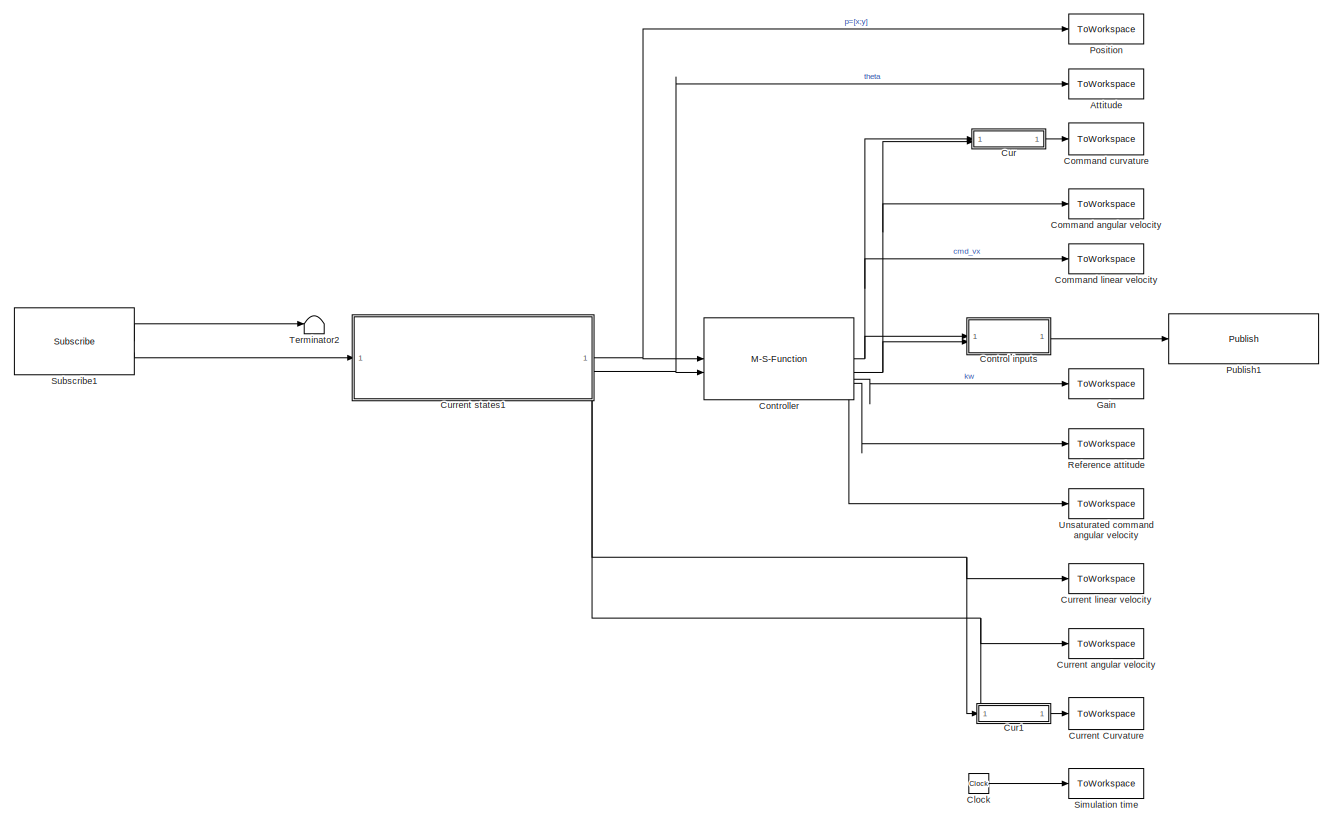
[diagram: root canvas - part 1/2, left side, full height]
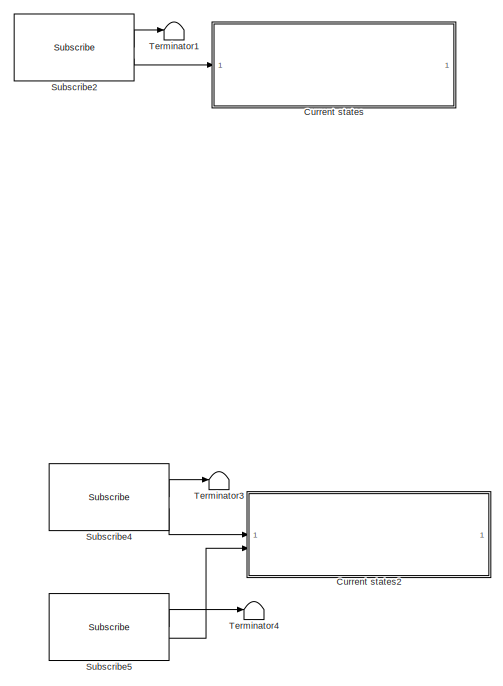
[diagram: root canvas - part 2/2, bottom right region]
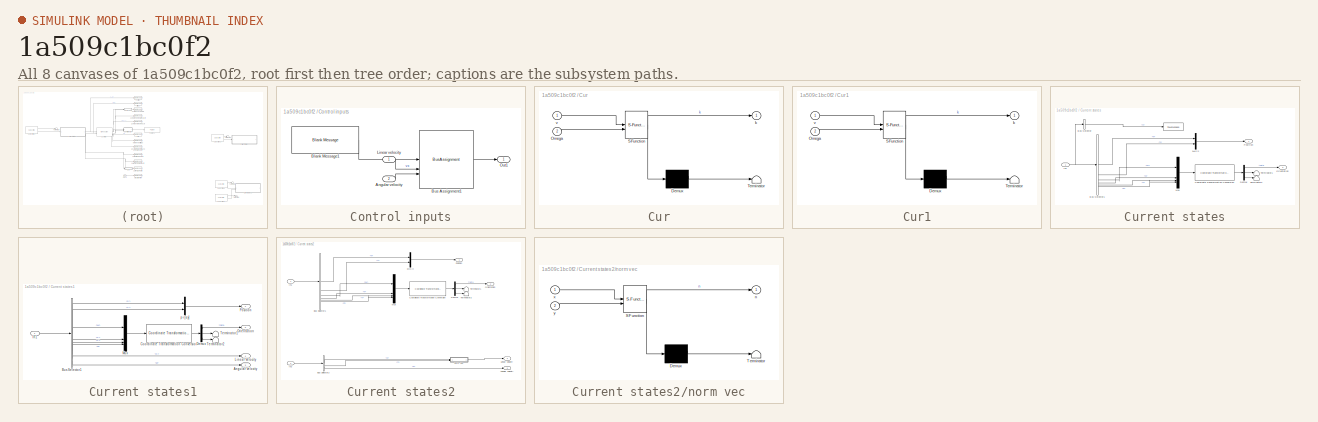
[diagram: thumbnail index - all 8 canvases of the model, root first then tree order]
MODEL slx_1a509c1bc0f2
KIND model
CONFIG AbsTol = auto
CONFIG EnableMultiTasking = off
CONFIG FixedStep = 0.1
CONFIG MaxStep = 0.1
CONFIG MinStep = auto
CONFIG RelTol = 1e-3
CONFIG SampleTimeConstraint = Unconstrained
CONFIG SolverName = FixedStepAuto
CONFIG StartTime = 0.0
CONFIG StopTime = 300
BLOCK [ToWorkspace] Attitude
  MaxDataPoints = inf
  SampleTime = -1
  VariableName = theta
BLOCK [Clock] Clock
BLOCK [ToWorkspace] Command angular velocity
  MaxDataPoints = inf
  SampleTime = -1
  VariableName = cmd_w
BLOCK [ToWorkspace] Command curvature
  MaxDataPoints = inf
  SampleTime = -1
  VariableName = cmd_k
BLOCK [ToWorkspace] Command linear velocity
  MaxDataPoints = inf
  SampleTime = -1
  VariableName = cmd_vx
BLOCK [SubSystem] Control inputs
BLOCK [Inport] Control inputs/Angular velocity
  Port = 2
BLOCK [Reference] Control inputs/Blank Message1  REF=robotlib/Blank Message
  SourceBlock = robotlib/Blank Message
  SourceType = ROS Blank Message
BLOCK [BusAssignment] Control inputs/Bus Assignment1
  AssignedSignals = Linear.X,Angular.Z
BLOCK [Inport] Control inputs/Linear velocity
BLOCK [Outport] Control inputs/Out1
BLOCK [M-S-Function] Controller
  FunctionName = se2_controller_Unicycle
  Parameters = pd,theta_d,rho,v_max,k1,k2,k3
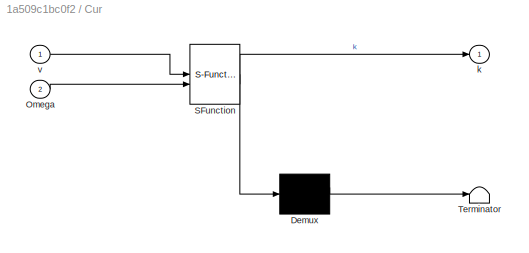
BLOCK [SubSystem] Cur
  ErrorFcn = Stateflow.Translate.translate
  PermitHierarchicalResolution = ExplicitOnly
  SFBlockType = MATLAB Function
  ShowPortLabels = none
  TreatAsAtomicUnit = on
BLOCK [Demux] Cur/ Demux 
  Outputs = 1
BLOCK [S-Function] Cur/ SFunction 
  EnableBusSupport = on
  FunctionName = sf_sfun
  PortCounts = [2 2]
  SFcnIsStateOwnerBlock = off
  SFunctionDeploymentMode = off
  Tag = Stateflow S-Function 2
BLOCK [Terminator] Cur/ Terminator 
BLOCK [Inport] Cur/Omega
  Port = 2
BLOCK [Outport] Cur/k
BLOCK [Inport] Cur/v
BLOCK [SubSystem] Cur1
  ErrorFcn = Stateflow.Translate.translate
  PermitHierarchicalResolution = ExplicitOnly
  SFBlockType = MATLAB Function
  ShowPortLabels = none
  TreatAsAtomicUnit = on
BLOCK [Demux] Cur1/ Demux 
  Outputs = 1
BLOCK [S-Function] Cur1/ SFunction 
  EnableBusSupport = on
  FunctionName = sf_sfun
  PortCounts = [2 2]
  SFcnIsStateOwnerBlock = off
  SFunctionDeploymentMode = off
  Tag = Stateflow S-Function 1
BLOCK [Terminator] Cur1/ Terminator 
BLOCK [Inport] Cur1/Omega
  Port = 2
BLOCK [Outport] Cur1/k
BLOCK [Inport] Cur1/v
BLOCK [ToWorkspace] Current Curvature
  MaxDataPoints = inf
  SampleTime = -1
  VariableName = cur_k
BLOCK [ToWorkspace] Current angular velocity
  MaxDataPoints = inf
  SampleTime = -1
  VariableName = cur_w
BLOCK [ToWorkspace] Current linear velocity
  MaxDataPoints = inf
  SampleTime = -1
  VariableName = cur_vx
BLOCK [SubSystem] Current states
  Commented = on
BLOCK [ToWorkspace] Current states/ 
  MaxDataPoints = inf
  SampleTime = -1
  VariableName = subscriber_dbg
BLOCK [BusSelector] Current states/Bus Selector
  OutputSignals = Pose.Position.Y
BLOCK [BusSelector] Current states/Bus Selector1
  OutputSignals = Pose.Position.X,Pose.Position.Y,Pose.Orientation.W,Pose.Orientation.X,Pose.Orientation.Y,Pose.Orientation.Z
BLOCK [Reference] Current states/Coordinate Transformation Conversion  REF=robotcorelib/Coordinate Transformation Conversion
  SourceBlock = robotcorelib/Coordinate Transformation Conversion
  SourceType = robotics.slcore.internal.block.CoordinateTransformationConversion
BLOCK [Demux] Current states/Demux
  Outputs = 3
BLOCK [Inport] Current states/In1
BLOCK [Mux] Current states/Mux
  DisplayOption = bar
BLOCK [Outport] Current states/Orientation
  Port = 2
  PortDimensions = 1
BLOCK [Outport] Current states/Position
BLOCK [Terminator] Current states/Terminator1
BLOCK [Terminator] Current states/Terminator2
BLOCK [Mux] Current states/p=[x;y]
  DisplayOption = bar
  Inputs = 2
BLOCK [SubSystem] Current states1
  PortSchema = {"entries":[{"content":{"sides":[{"content":{"connectorIds":["In1"]},"type":"ConnectorPlacement.EquallySpacedRectSide","uuid":"3a937533-5ac1-47a3-a799-e449f50df633"},{"content":{"connectorIds":["Out1","Out2"],"side":"RIGHT"},"type":"ConnectorPlacement.EquallySpacedRectSide","uuid":"28bb4fea-7ea7-48a5-8e7f-13c0477b58b8"},{"content":{"side":"TOP"},"type":"ConnectorPlacement.EquallySpacedRectSide","u...<+386ch>
BLOCK [Outport] Current states1/Angular velocity
  Port = 3
BLOCK [BusSelector] Current states1/Bus Selector1
  OutputSignals = Pose.Pose.Position.X,Pose.Pose.Position.Y,Pose.Pose.Orientation.W,Pose.Pose.Orientation.X,Pose.Pose.Orientation.Y,Pose.Pose.Orientation.Z,Twist.Twist.Linear.X,Twist.Twist.Angular.Z
BLOCK [Reference] Current states1/Coordinate Transformation Conversion  REF=robotcorelib/Coordinate Transformation Conversion
  SourceBlock = robotcorelib/Coordinate Transformation Conversion
  SourceType = robotics.slcore.internal.block.CoordinateTransformationConversion
BLOCK [Demux] Current states1/Demux
  Outputs = 3
BLOCK [Inport] Current states1/In1
BLOCK [Outport] Current states1/Linear velocity
  Port = 4
BLOCK [Mux] Current states1/Mux
  DisplayOption = bar
BLOCK [Outport] Current states1/Orientation
  Port = 2
  PortDimensions = 1
BLOCK [Outport] Current states1/Position
BLOCK [Terminator] Current states1/Terminator1
BLOCK [Terminator] Current states1/Terminator2
BLOCK [Mux] Current states1/p=[x;y]
  DisplayOption = bar
  Inputs = 2
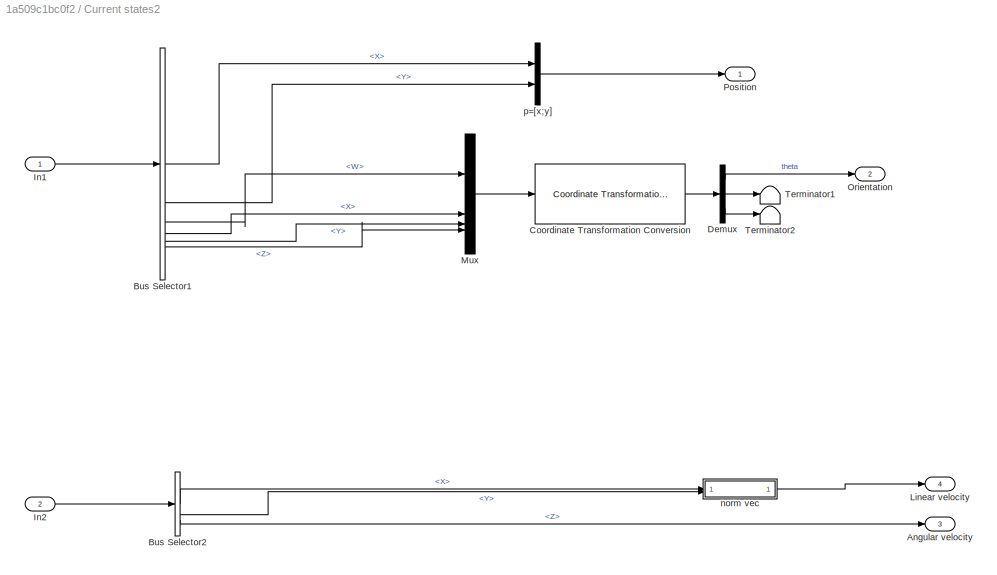
BLOCK [SubSystem] Current states2
  Commented = on
  PortSchema = {"entries":[{"content":{"sides":[{"content":{"connectorIds":["In1","In2"]},"type":"ConnectorPlacement.EquallySpacedRectSide","uuid":"5d7394a5-d76f-447d-90fe-ec60b78a0a1b"},{"content":{"connectorIds":["Out1","Out2"],"side":"RIGHT"},"type":"ConnectorPlacement.EquallySpacedRectSide","uuid":"5edace55-6d81-420f-a564-ef97bbacc503"},{"content":{"side":"TOP"},"type":"ConnectorPlacement.EquallySpacedRectSi...<+392ch>
BLOCK [Outport] Current states2/Angular velocity
  Port = 3
BLOCK [BusSelector] Current states2/Bus Selector1
  OutputSignals = Pose.Position.X,Pose.Position.Y,Pose.Orientation.W,Pose.Orientation.X,Pose.Orientation.Y,Pose.Orientation.Z
BLOCK [BusSelector] Current states2/Bus Selector2
  OutputSignals = Twist.Linear.X,Twist.Linear.Y,Twist.Angular.Z
BLOCK [Reference] Current states2/Coordinate Transformation Conversion  REF=robotcorelib/Coordinate Transformation Conversion
  SourceBlock = robotcorelib/Coordinate Transformation Conversion
  SourceType = robotics.slcore.internal.block.CoordinateTransformationConversion
BLOCK [Demux] Current states2/Demux
  Outputs = 3
BLOCK [Inport] Current states2/In1
BLOCK [Inport] Current states2/In2
  Port = 2
BLOCK [Outport] Current states2/Linear velocity
  Port = 4
BLOCK [Mux] Current states2/Mux
  DisplayOption = bar
BLOCK [Outport] Current states2/Orientation
  Port = 2
  PortDimensions = 1
BLOCK [Outport] Current states2/Position
BLOCK [Terminator] Current states2/Terminator1
BLOCK [Terminator] Current states2/Terminator2
BLOCK [SubSystem] Current states2/norm vec
  ErrorFcn = Stateflow.Translate.translate
  PermitHierarchicalResolution = ExplicitOnly
  SFBlockType = MATLAB Function
  ShowPortLabels = none
  TreatAsAtomicUnit = on
BLOCK [Demux] Current states2/norm vec/ Demux 
  Outputs = 1
BLOCK [S-Function] Current states2/norm vec/ SFunction 
  EnableBusSupport = on
  FunctionName = sf_sfun
  PortCounts = [2 2]
  SFcnIsStateOwnerBlock = off
  SFunctionDeploymentMode = off
  Tag = Stateflow S-Function 3
BLOCK [Terminator] Current states2/norm vec/ Terminator 
BLOCK [Outport] Current states2/norm vec/n
BLOCK [Inport] Current states2/norm vec/x
BLOCK [Inport] Current states2/norm vec/y
  Port = 2
BLOCK [Mux] Current states2/p=[x;y]
  DisplayOption = bar
  Inputs = 2
BLOCK [ToWorkspace] Gain
  MaxDataPoints = inf
  SampleTime = -1
  VariableName = kw
BLOCK [ToWorkspace] Position
  MaxDataPoints = inf
  SampleTime = -1
  VariableName = p
BLOCK [Reference] Publish1  REF=robotlib/Publish
  SourceBlock = robotlib/Publish
  SourceType = ROS Publish
BLOCK [ToWorkspace] Reference attitude
  MaxDataPoints = inf
  SampleTime = -1
  VariableName = theta_r
BLOCK [ToWorkspace] Simulation time
  MaxDataPoints = inf
  SampleTime = -1
  VariableName = timeout
BLOCK [Reference] Subscribe1  REF=robotlib/Subscribe
  SourceBlock = robotlib/Subscribe
  SourceType = ROS Subscribe
BLOCK [Reference] Subscribe2  REF=robotlib/Subscribe
  Commented = on
  SourceBlock = robotlib/Subscribe
  SourceType = ROS Subscribe
BLOCK [Reference] Subscribe4  REF=robotlib/Subscribe
  Commented = on
  SourceBlock = robotlib/Subscribe
  SourceType = ROS Subscribe
BLOCK [Reference] Subscribe5  REF=robotlib/Subscribe
  Commented = on
  SourceBlock = robotlib/Subscribe
  SourceType = ROS Subscribe
BLOCK [Terminator] Terminator1
  Commented = on
BLOCK [Terminator] Terminator2
BLOCK [Terminator] Terminator3
  Commented = on
BLOCK [Terminator] Terminator4
  Commented = on
BLOCK [ToWorkspace] Unsaturated command angular velocity
  MaxDataPoints = inf
  SampleTime = -1
  VariableName = cmd_w0
LINE Clock:1 -> Simulation time:1
LINE Control inputs/Angular velocity:1 -> Control inputs/Bus Assignment1:3
LINE Control inputs/Blank Message1:1 -> Control inputs/Bus Assignment1:1
LINE Control inputs/Bus Assignment1:1 -> Control inputs/Out1:1
LINE Control inputs/Linear velocity:1 -> Control inputs/Bus Assignment1:2
LINE Control inputs:1 -> Publish1:1
NET Controller:1 -> Command linear velocity:1, Control inputs:1, Cur:1
NET Controller:2 -> Command angular velocity:1, Control inputs:2, Cur:2
LINE Controller:3 -> Gain:1
LINE Controller:4 -> Reference attitude:1
LINE Controller:5 -> Unsaturated command angular velocity:1
LINE Cur1:1 -> Current Curvature:1
LINE Cur:1 -> Command curvature:1
LINE Current states/Bus Selector1:1 -> Current states/p=[x;y]:1
LINE Current states/Bus Selector1:2 -> Current states/p=[x;y]:2
LINE Current states/Bus Selector1:3 -> Current states/Mux:1
LINE Current states/Bus Selector1:4 -> Current states/Mux:2
LINE Current states/Bus Selector1:5 -> Current states/Mux:3
LINE Current states/Bus Selector1:6 -> Current states/Mux:4
LINE Current states/Bus Selector:1 -> Current states/ :1
LINE Current states/Coordinate Transformation Conversion:1 -> Current states/Demux:1
LINE Current states/Demux:1 -> Current states/Orientation:1
LINE Current states/Demux:2 -> Current states/Terminator1:1
LINE Current states/Demux:3 -> Current states/Terminator2:1
NET Current states/In1:1 -> Current states/Bus Selector1:1, Current states/Bus Selector:1
LINE Current states/Mux:1 -> Current states/Coordinate Transformation Conversion:1
LINE Current states/p=[x;y]:1 -> Current states/Position:1
LINE Current states1/Bus Selector1:1 -> Current states1/p=[x;y]:1
LINE Current states1/Bus Selector1:2 -> Current states1/p=[x;y]:2
LINE Current states1/Bus Selector1:3 -> Current states1/Mux:1
LINE Current states1/Bus Selector1:4 -> Current states1/Mux:2
LINE Current states1/Bus Selector1:5 -> Current states1/Mux:3
LINE Current states1/Bus Selector1:6 -> Current states1/Mux:4
LINE Current states1/Bus Selector1:7 -> Current states1/Linear velocity:1
LINE Current states1/Bus Selector1:8 -> Current states1/Angular velocity:1
LINE Current states1/Coordinate Transformation Conversion:1 -> Current states1/Demux:1
LINE Current states1/Demux:1 -> Current states1/Orientation:1
LINE Current states1/Demux:2 -> Current states1/Terminator1:1
LINE Current states1/Demux:3 -> Current states1/Terminator2:1
LINE Current states1/In1:1 -> Current states1/Bus Selector1:1
LINE Current states1/Mux:1 -> Current states1/Coordinate Transformation Conversion:1
LINE Current states1/p=[x;y]:1 -> Current states1/Position:1
NET Current states1:1 -> Controller:1, Position:1
NET Current states1:2 -> Attitude:1, Controller:2
NET Current states1:3 -> Cur1:2, Current angular velocity:1
NET Current states1:4 -> Cur1:1, Current linear velocity:1
LINE Current states2/Bus Selector1:1 -> Current states2/p=[x;y]:1
LINE Current states2/Bus Selector1:2 -> Current states2/p=[x;y]:2
LINE Current states2/Bus Selector1:3 -> Current states2/Mux:1
LINE Current states2/Bus Selector1:4 -> Current states2/Mux:2
LINE Current states2/Bus Selector1:5 -> Current states2/Mux:3
LINE Current states2/Bus Selector1:6 -> Current states2/Mux:4
LINE Current states2/Bus Selector2:1 -> Current states2/norm vec:1
LINE Current states2/Bus Selector2:2 -> Current states2/norm vec:2
LINE Current states2/Bus Selector2:3 -> Current states2/Angular velocity:1
LINE Current states2/Coordinate Transformation Conversion:1 -> Current states2/Demux:1
LINE Current states2/Demux:1 -> Current states2/Orientation:1
LINE Current states2/Demux:2 -> Current states2/Terminator1:1
LINE Current states2/Demux:3 -> Current states2/Terminator2:1
LINE Current states2/In1:1 -> Current states2/Bus Selector1:1
LINE Current states2/In2:1 -> Current states2/Bus Selector2:1
LINE Current states2/Mux:1 -> Current states2/Coordinate Transformation Conversion:1
LINE Current states2/norm vec:1 -> Current states2/Linear velocity:1
LINE Current states2/p=[x;y]:1 -> Current states2/Position:1
LINE Subscribe1:1 -> Terminator2:1
LINE Subscribe1:2 -> Current states1:1
LINE Subscribe2:1 -> Terminator1:1
LINE Subscribe2:2 -> Current states:1
LINE Subscribe4:1 -> Terminator3:1
LINE Subscribe4:2 -> Current states2:1
LINE Subscribe5:1 -> Terminator4:1
LINE Subscribe5:2 -> Current states2:2
note: NET lines group one-source signal fan-out (src -> all destinations, sorted); 1:1 wires keep LINE
CHART Cur states=1 transitions=1
  STATE_LABEL 'eML_blk_kernel()'
  STATE_LABEL 'SCRIPT:\nfunction k = k(v,Omega)\nk = norm(Omega)/norm(v);'
CHART Current states2/norm vec states=1 transitions=1
  STATE_LABEL 'eML_blk_kernel()'
  STATE_LABEL 'SCRIPT:\nfunction n = norm_vec(x,y)\nn = sqrt(x^2+y^2);'
CHART Cur1 states=1 transitions=1
  STATE_LABEL 'eML_blk_kernel()'
  STATE_LABEL 'SCRIPT:\nfunction k = k(v,Omega)\nk = norm(Omega)/norm(v);'
CHART  states=0 transitions=0
CHART  states=0 transitions=0
CHART  states=0 transitions=0
